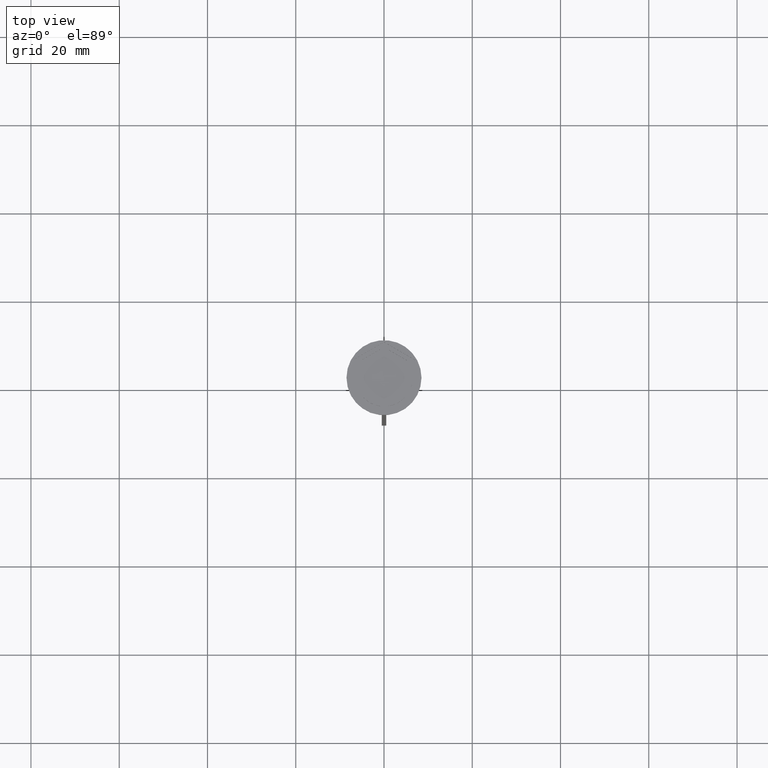
[diagram: clean part render]
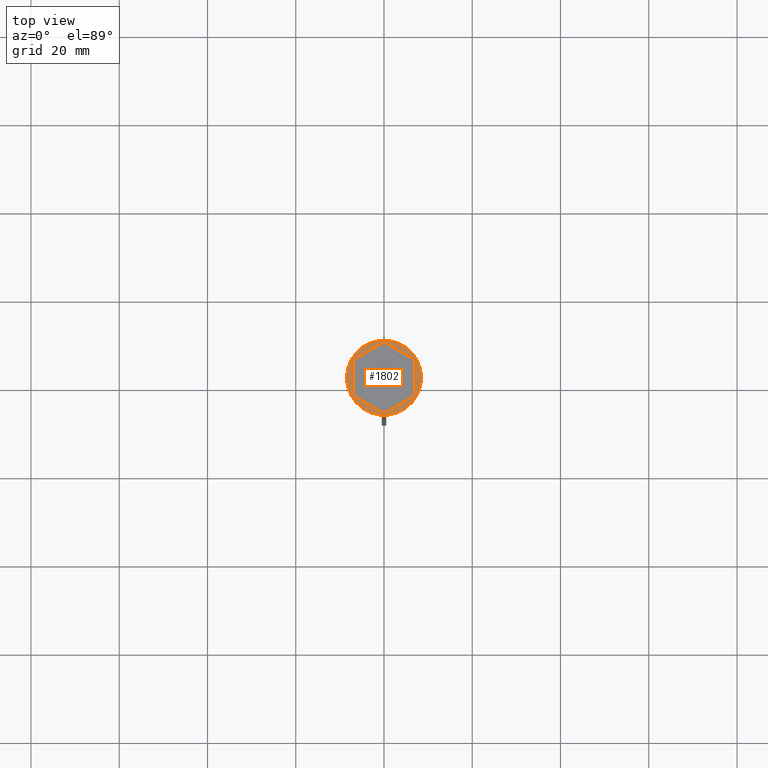
[diagram: same view with one face highlighted and labeled with its STEP entity id]
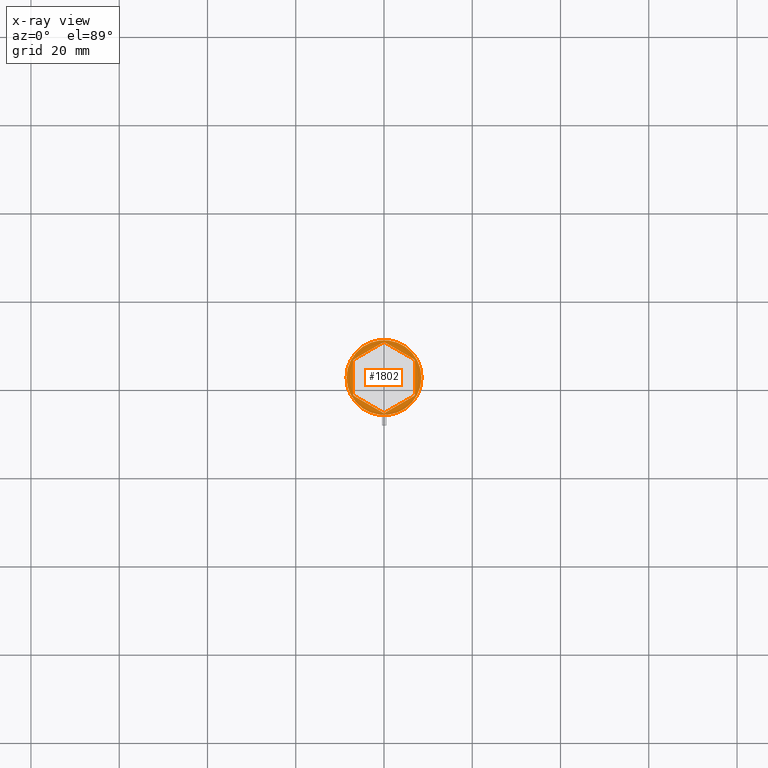
[diagram: x-ray of the same camera — body ghosted, the highlighted face saturated]
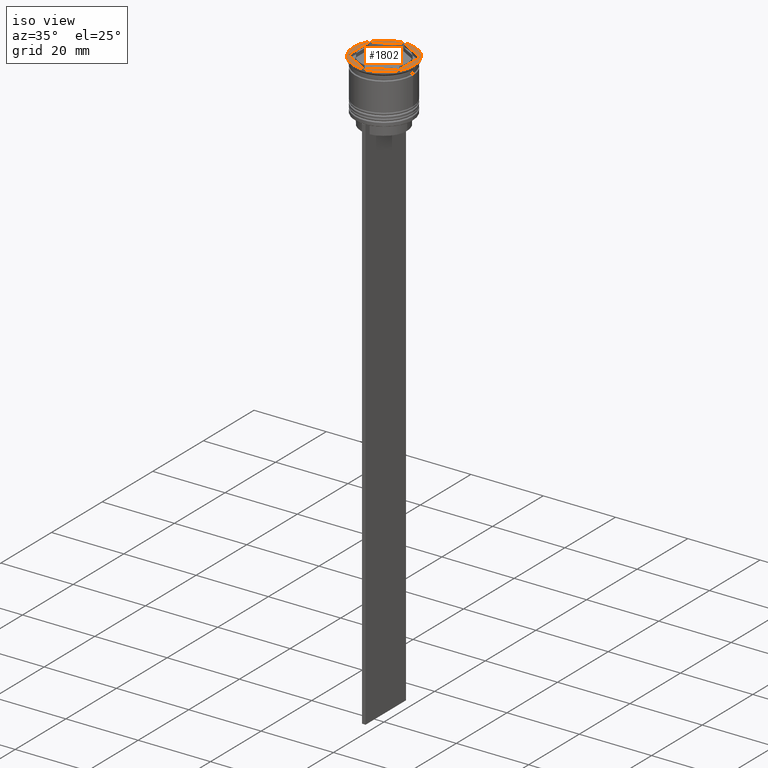
[diagram: same view with one face highlighted and labeled with its STEP entity id]
A machine part, top view. The second image highlights one B-rep face of the part: STEP entity #1802.
The next image is the same camera in x-ray: the body ghosted, the highlighted face saturated — about 0% of this face is hidden behind the body in this view.
A second angle (iso view) of the same face is appended — the face is thin or edge-on in the first view.
In plain terms, the highlighted planar face has unit normal (0, -0, 1).
Its self-contained STEP definition (entity closure, byte-faithful):
#86 = DIRECTION ( 'NONE',  ( 1.000000000000000000, 0.000000000000000000, 0.000000000000000000 ) ) ;
#94 = EDGE_LOOP ( 'NONE', ( #284, #242 ) ) ;
#114 = CARTESIAN_POINT ( 'NONE',  ( 0.000000000000000000, 8.082903768654762899, 0.000000000000000000 ) ) ;
#184 = EDGE_CURVE ( 'NONE', #1382, #502, #2322, .T. ) ;
#242 = ORIENTED_EDGE ( 'NONE', *, *, #1237, .T. ) ;
#284 = ORIENTED_EDGE ( 'NONE', *, *, #1275, .T. ) ;
#285 = CARTESIAN_POINT ( 'NONE',  ( 7.000000000000000888, 4.041451884327382338, 0.000000000000000000 ) ) ;
#307 = CARTESIAN_POINT ( 'NONE',  ( 8.500000000000000000, 0.000000000000000000, 0.000000000000000000 ) ) ;
#360 = CARTESIAN_POINT ( 'NONE',  ( -7.000000000000000888, -4.041451884327381450, 0.000000000000000000 ) ) ;
#413 = VERTEX_POINT ( 'NONE', #307 ) ;
#417 = VERTEX_POINT ( 'NONE', #2426 ) ;
#448 = EDGE_CURVE ( 'NONE', #1982, #1382, #1276, .T. ) ;
#484 = ORIENTED_EDGE ( 'NONE', *, *, #184, .F. ) ;
#486 = CARTESIAN_POINT ( 'NONE',  ( -8.500000000000000000, 1.040949779275250140E-15, 0.000000000000000000 ) ) ;
#502 = VERTEX_POINT ( 'NONE', #360 ) ;
#512 = CARTESIAN_POINT ( 'NONE',  ( 0.000000000000000000, 0.000000000000000000, 0.000000000000000000 ) ) ;
#521 = DIRECTION ( 'NONE',  ( -0.000000000000000000, -0.000000000000000000, 1.000000000000000000 ) ) ;
#539 = CIRCLE ( 'NONE', #926, 8.500000000000000000 ) ;
#545 = LINE ( 'NONE', #882, #1442 ) ;
#557 = CARTESIAN_POINT ( 'NONE',  ( 7.000000000000000000, -4.041451884327381450, 0.000000000000000000 ) ) ;
#568 = ORIENTED_EDGE ( 'NONE', *, *, #1845, .F. ) ;
#601 = CARTESIAN_POINT ( 'NONE',  ( -7.000000000000000888, 4.041451884327381450, 0.000000000000000000 ) ) ;
#607 = VERTEX_POINT ( 'NONE', #1915 ) ;
#614 = CIRCLE ( 'NONE', #2263, 8.500000000000000000 ) ;
#701 = DIRECTION ( 'NONE',  ( -0.000000000000000000, -0.000000000000000000, 1.000000000000000000 ) ) ;
#749 = CARTESIAN_POINT ( 'NONE',  ( -7.000000000000000888, 4.041451884327381450, 0.000000000000000000 ) ) ;
#874 = CARTESIAN_POINT ( 'NONE',  ( 2.174016704710901386E-15, -8.082903768654762899, 0.000000000000000000 ) ) ;
#882 = CARTESIAN_POINT ( 'NONE',  ( 7.000000000000000888, 4.041451884327382338, 0.000000000000000000 ) ) ;
#926 = AXIS2_PLACEMENT_3D ( 'NONE', #1031, #701, #1808 ) ;
#974 = DIRECTION ( 'NONE',  ( 1.073081856240827703E-16, 1.000000000000000000, 0.000000000000000000 ) ) ;
#1028 = CARTESIAN_POINT ( 'NONE',  ( -7.000000000000000888, -4.041451884327381450, 0.000000000000000000 ) ) ;
#1031 = CARTESIAN_POINT ( 'NONE',  ( 0.000000000000000000, 0.000000000000000000, 0.000000000000000000 ) ) ;
#1038 = VECTOR ( 'NONE', #1980, 1000.000000000000114 ) ;
#1119 = VECTOR ( 'NONE', #974, 1000.000000000000000 ) ;
#1158 = ORIENTED_EDGE ( 'NONE', *, *, #1777, .F. ) ;
#1237 = EDGE_CURVE ( 'NONE', #1277, #413, #539, .T. ) ;
#1261 = DIRECTION ( 'NONE',  ( -0.8660254037844387076, 0.4999999999999998890, 0.000000000000000000 ) ) ;
#1275 = EDGE_CURVE ( 'NONE', #413, #1277, #614, .T. ) ;
#1276 = LINE ( 'NONE', #1840, #2212 ) ;
#1277 = VERTEX_POINT ( 'NONE', #486 ) ;
#1309 = EDGE_LOOP ( 'NONE', ( #568, #1367, #1921, #1158, #484, #2269 ) ) ;
#1336 = DIRECTION ( 'NONE',  ( 0.000000000000000000, -1.000000000000000000, 0.000000000000000000 ) ) ;
#1349 = LINE ( 'NONE', #557, #1119 ) ;
#1366 = AXIS2_PLACEMENT_3D ( 'NONE', #512, #2441, #1451 ) ;
#1367 = ORIENTED_EDGE ( 'NONE', *, *, #1439, .F. ) ;
#1382 = VERTEX_POINT ( 'NONE', #749 ) ;
#1439 = EDGE_CURVE ( 'NONE', #607, #1762, #1349, .T. ) ;
#1442 = VECTOR ( 'NONE', #1261, 1000.000000000000114 ) ;
#1451 = DIRECTION ( 'NONE',  ( 1.000000000000000000, 0.000000000000000000, 0.000000000000000000 ) ) ;
#1458 = CARTESIAN_POINT ( 'NONE',  ( 0.000000000000000000, 0.000000000000000000, 0.000000000000000000 ) ) ;
#1461 = PLANE ( 'NONE',  #1366 ) ;
#1539 = FACE_BOUND ( 'NONE', #1309, .T. ) ;
#1639 = LINE ( 'NONE', #874, #1813 ) ;
#1742 = FACE_OUTER_BOUND ( 'NONE', #94, .T. ) ;
#1762 = VERTEX_POINT ( 'NONE', #285 ) ;
#1777 = EDGE_CURVE ( 'NONE', #502, #417, #2193, .T. ) ;
#1802 = ADVANCED_FACE ( 'NONE', ( #1539, #1742 ), #1461, .T. ) ;
#1808 = DIRECTION ( 'NONE',  ( 1.000000000000000000, 0.000000000000000000, 0.000000000000000000 ) ) ;
#1813 = VECTOR ( 'NONE', #2422, 1000.000000000000227 ) ;
#1840 = CARTESIAN_POINT ( 'NONE',  ( 0.000000000000000000, 8.082903768654762899, 0.000000000000000000 ) ) ;
#1845 = EDGE_CURVE ( 'NONE', #1762, #1982, #545, .T. ) ;
#1915 = CARTESIAN_POINT ( 'NONE',  ( 7.000000000000000000, -4.041451884327381450, 0.000000000000000000 ) ) ;
#1921 = ORIENTED_EDGE ( 'NONE', *, *, #2018, .F. ) ;
#1980 = DIRECTION ( 'NONE',  ( 0.8660254037844387076, -0.4999999999999997224, 0.000000000000000000 ) ) ;
#1982 = VERTEX_POINT ( 'NONE', #114 ) ;
#2018 = EDGE_CURVE ( 'NONE', #417, #607, #1639, .T. ) ;
#2193 = LINE ( 'NONE', #1028, #1038 ) ;
#2212 = VECTOR ( 'NONE', #2221, 1000.000000000000114 ) ;
#2221 = DIRECTION ( 'NONE',  ( -0.8660254037844385966, -0.4999999999999999445, 0.000000000000000000 ) ) ;
#2263 = AXIS2_PLACEMENT_3D ( 'NONE', #1458, #521, #86 ) ;
#2269 = ORIENTED_EDGE ( 'NONE', *, *, #448, .F. ) ;
#2322 = LINE ( 'NONE', #601, #2330 ) ;
#2330 = VECTOR ( 'NONE', #1336, 1000.000000000000000 ) ;
#2422 = DIRECTION ( 'NONE',  ( 0.8660254037844384856, 0.5000000000000001110, 0.000000000000000000 ) ) ;
#2426 = CARTESIAN_POINT ( 'NONE',  ( 2.174016704710901386E-15, -8.082903768654762899, 0.000000000000000000 ) ) ;
#2441 = DIRECTION ( 'NONE',  ( 0.000000000000000000, -0.000000000000000000, 1.000000000000000000 ) ) ;